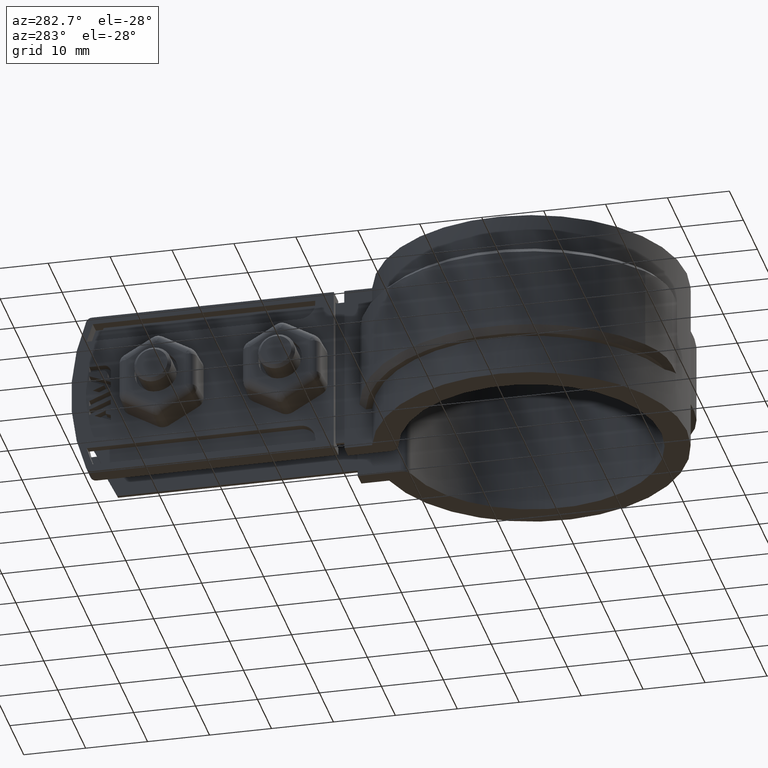
[diagram: clean part render]
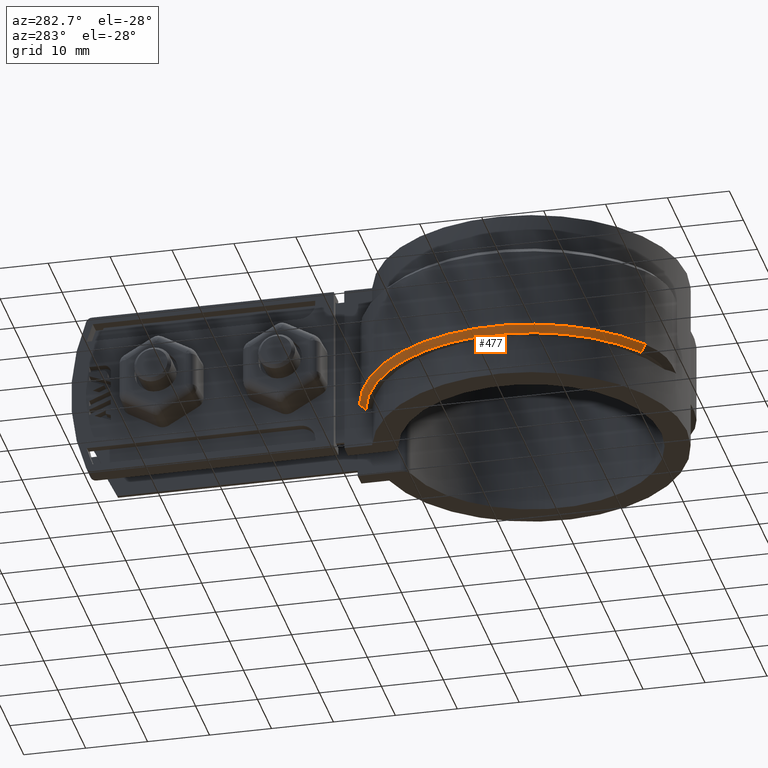
[diagram: same view with one face highlighted and labeled with its STEP entity id]
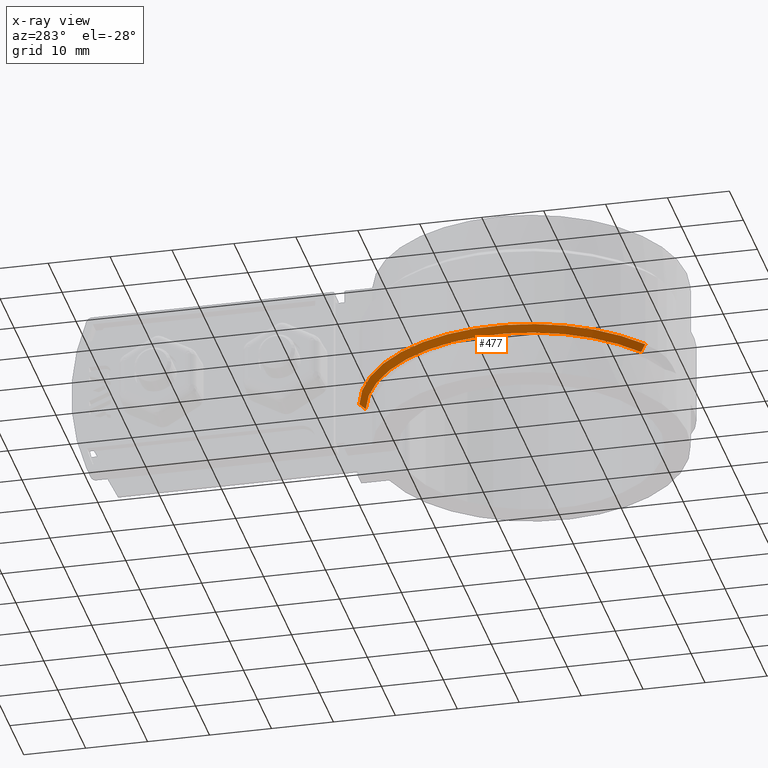
[diagram: x-ray of the same camera — body ghosted, the highlighted face saturated]
A machine part, auxiliary view. The second image highlights one B-rep face of the part: STEP entity #477.
The next image is the same camera in x-ray: the body ghosted, the highlighted face saturated — about 0% of this face is hidden behind the body in this view.
In plain terms, the highlighted conical surface has half-angle 45 deg.
Its self-contained STEP definition (entity closure, byte-faithful):
#477 = ADVANCED_FACE( '', ( #949 ), #950, .T. );
#949 = FACE_OUTER_BOUND( '', #2025, .T. );
#950 = CONICAL_SURFACE( '', #2026, 27.0950000000000, 0.785398163397448 );
#2025 = EDGE_LOOP( '', ( #4752, #4753, #4754, #4755 ) );
#2026 = AXIS2_PLACEMENT_3D( '', #4756, #4757, #4758 );
#4752 = ORIENTED_EDGE( '', *, *, #6892, .F. );
#4753 = ORIENTED_EDGE( '', *, *, #6876, .F. );
#4754 = ORIENTED_EDGE( '', *, *, #6937, .F. );
#4755 = ORIENTED_EDGE( '', *, *, #6751, .F. );
#4756 = CARTESIAN_POINT( '', ( 0.000000000000000, 3.46944695195361E-015, -19.0000000000000 ) );
#4757 = DIRECTION( '', ( 0.000000000000000, 0.000000000000000, 1.00000000000000 ) );
#4758 = DIRECTION( '', ( 1.00000000000000, 0.000000000000000, 0.000000000000000 ) );
#6751 = EDGE_CURVE( '', #7790, #7792, #7793, .T. );
#6876 = EDGE_CURVE( '', #8008, #8010, #8011, .T. );
#6892 = EDGE_CURVE( '', #8010, #7790, #8031, .F. );
#6937 = EDGE_CURVE( '', #7792, #8008, #8099, .T. );
#7790 = VERTEX_POINT( '', #10180 );
#7792 = VERTEX_POINT( '', #10183 );
#7793 = CIRCLE( '', #10184, 27.0950000000000 );
#8008 = VERTEX_POINT( '', #11205 );
#8010 = VERTEX_POINT( '', #11207 );
#8011 = CIRCLE( '', #11208, 26.0950000000000 );
#8031 = B_SPLINE_CURVE_WITH_KNOTS( '', 3, ( #11274, #11275, #11276, #11277 ), .UNSPECIFIED., .F., .F., ( 4, 4 ), ( 707.068956056764, 707.070389781413 ), .UNSPECIFIED. );
#8099 = LINE( '', #11385, #11386 );
#10180 = CARTESIAN_POINT( '', ( -6.10000000000002, 26.3994133457545, -19.0000000000000 ) );
#10183 = CARTESIAN_POINT( '', ( -15.8725259722264, -21.9590970729900, -19.0000000000000 ) );
#10184 = AXIS2_PLACEMENT_3D( '', #13024, #13025, #13026 );
#11205 = CARTESIAN_POINT( '', ( -15.2867158237774, -21.1486487587996, -20.0000000000000 ) );
#11207 = CARTESIAN_POINT( '', ( -6.10000000000002, 25.3720126320322, -20.0000000000000 ) );
#11208 = AXIS2_PLACEMENT_3D( '', #13151, #13152, #13153 );
#11274 = CARTESIAN_POINT( '', ( -6.10000000000002, 26.3994133457837, -18.9999999999715 ) );
#11275 = CARTESIAN_POINT( '', ( -6.10000000000002, 26.0571174740645, -19.3335084038860 ) );
#11276 = CARTESIAN_POINT( '', ( -6.10000000000002, 25.7146573046891, -19.6668486314256 ) );
#11277 = CARTESIAN_POINT( '', ( -6.10000000000002, 25.3720126320557, -19.9999999999771 ) );
#11385 = CARTESIAN_POINT( '', ( -15.8725259722264, -21.9590970729900, -19.0000000000000 ) );
#11386 = VECTOR( '', #13242, 1000.00000000000 );
#13024 = CARTESIAN_POINT( '', ( 0.000000000000000, 3.46944695195361E-015, -19.0000000000000 ) );
#13025 = DIRECTION( '', ( 0.000000000000000, 0.000000000000000, 1.00000000000000 ) );
#13026 = DIRECTION( '', ( 1.00000000000000, 0.000000000000000, 0.000000000000000 ) );
#13151 = CARTESIAN_POINT( '', ( 0.000000000000000, 3.46944695195361E-015, -20.0000000000000 ) );
#13152 = DIRECTION( '', ( 0.000000000000000, 0.000000000000000, -1.00000000000000 ) );
#13153 = DIRECTION( '', ( -1.00000000000000, 0.000000000000000, 0.000000000000000 ) );
#13242 = DIRECTION( '', ( 0.414230328456204, 0.573073498765267, -0.707106781186548 ) );